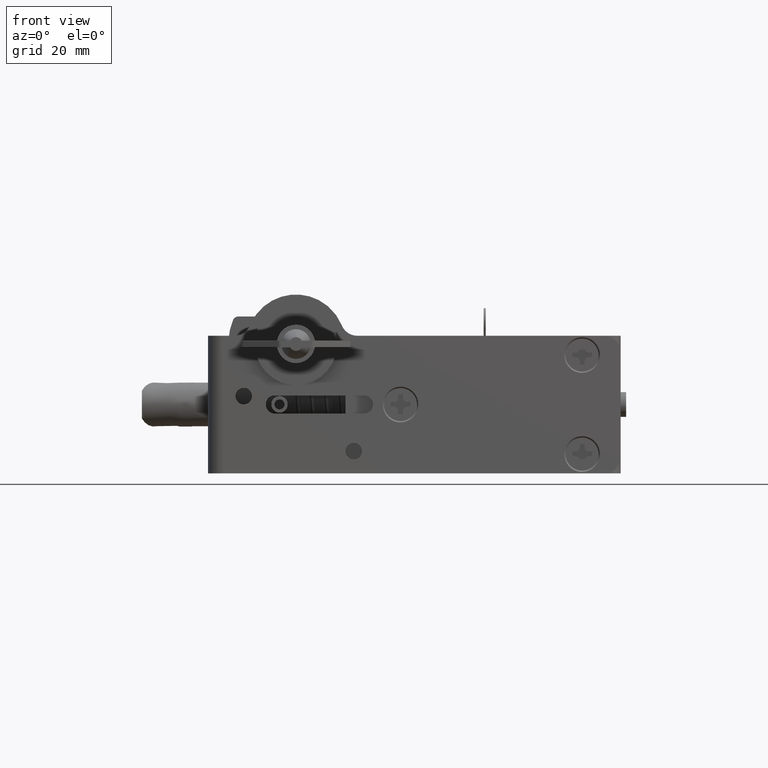
[diagram: clean part render]
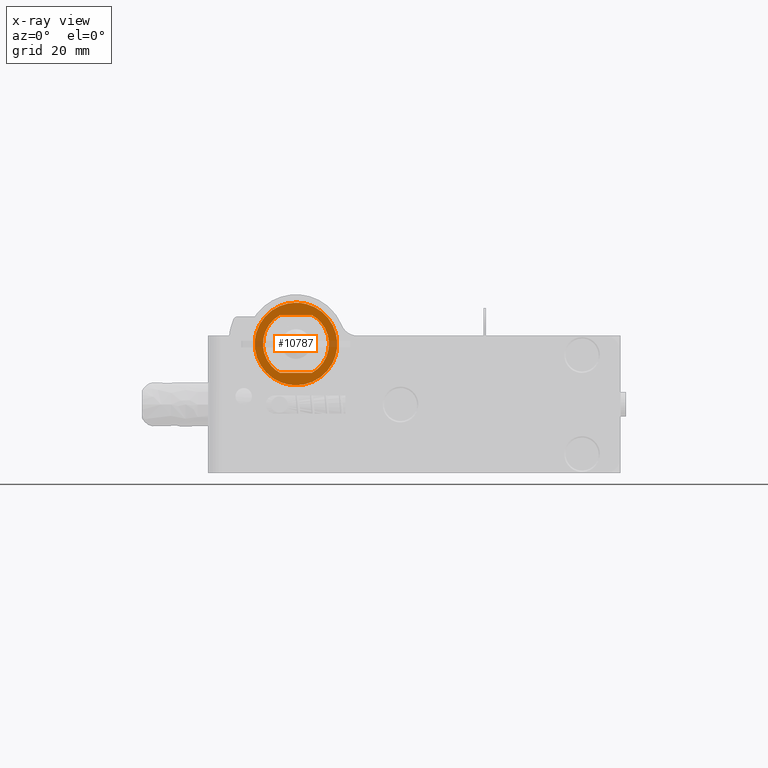
[diagram: x-ray — body ghosted, one internal face saturated and labeled with its STEP entity id]
A machine part, front view, then the same camera in x-ray: the body is ghosted and one INTERNAL B-rep face — a face not visible from any outside direction — is saturated and labeled: STEP entity #10787.
In plain terms, the highlighted face is a freeform B-spline surface patch.
Its self-contained STEP definition (entity closure, byte-faithful):
#9805=CARTESIAN_POINT('',(7.447564542535472,8.517430E-014,-0.885247075541558));
#9806=VERTEX_POINT('',#9805);
#9812=CARTESIAN_POINT('',(-1.940231E-015,8.526513E-014,7.499992000000000));
#9813=VERTEX_POINT('',#9812);
#9814=CARTESIAN_POINT('',(7.447564542535472,8.517430E-014,-0.885247075541558));
#9815=CARTESIAN_POINT('',(7.499991999999998,8.526513E-014,-0.444176007342346));
#9816=CARTESIAN_POINT('',(7.499991999999998,8.526513E-014,0.0));
#9817=CARTESIAN_POINT('',(7.499991999999998,8.526513E-014,7.499992000000001));
#9818=CARTESIAN_POINT('',(-1.940231E-015,8.526513E-014,7.499992000000000));
#9826=(BOUNDED_CURVE()B_SPLINE_CURVE(2,(#9814,#9815,#9816,#9817,#9818),.UNSPECIFIED.,.F.,.U.)B_SPLINE_CURVE_WITH_KNOTS((3,2,3),(0.229562671849923,0.250000000000000,0.500000000000000),.UNSPECIFIED.)CURVE()GEOMETRIC_REPRESENTATION_ITEM()RATIONAL_B_SPLINE_CURVE((0.956027142931557,0.976056180696708,1.0,0.707106781186547,1.0))REPRESENTATION_ITEM(''));
#9827=EDGE_CURVE('',#9806,#9813,#9826,.T.);
#9829=CARTESIAN_POINT('',(-7.486003003080642,8.540391E-014,0.457863558204431));
#9830=VERTEX_POINT('',#9829);
#9831=CARTESIAN_POINT('',(-1.940231E-015,8.526513E-014,7.499992000000000));
#9832=CARTESIAN_POINT('',(-7.055287975990589,8.526513E-014,7.499992000000002));
#9833=CARTESIAN_POINT('',(-7.486003003080643,8.540391E-014,0.457863558204431));
#9841=(BOUNDED_CURVE()B_SPLINE_CURVE(2,(#9831,#9832,#9833),.UNSPECIFIED.,.F.,.U.)B_SPLINE_CURVE_WITH_KNOTS((3,3),(0.500000000000000,0.739332962238219),.UNSPECIFIED.)CURVE()GEOMETRIC_REPRESENTATION_ITEM()RATIONAL_B_SPLINE_CURVE((1.0,0.719603993287558,0.976072041665166))REPRESENTATION_ITEM(''));
#9842=EDGE_CURVE('',#9813,#9830,#9841,.T.);
#9916=CARTESIAN_POINT('',(-1.940231E-015,8.526513E-014,-7.499992000000000));
#9917=VERTEX_POINT('',#9916);
#9918=CARTESIAN_POINT('',(-7.486003003080642,8.540391E-014,0.457863558204431));
#9919=CARTESIAN_POINT('',(-7.499992000000002,8.526513E-014,0.229145480398859));
#9920=CARTESIAN_POINT('',(-7.499992000000002,8.526513E-014,0.0));
#9921=CARTESIAN_POINT('',(-7.499992000000004,8.526513E-014,-7.499992000000001));
#9922=CARTESIAN_POINT('',(-1.940231E-015,8.526513E-014,-7.499992000000000));
#9930=(BOUNDED_CURVE()B_SPLINE_CURVE(2,(#9918,#9919,#9920,#9921,#9922),.UNSPECIFIED.,.F.,.U.)B_SPLINE_CURVE_WITH_KNOTS((3,2,3),(0.739332962238220,0.750000000000000,1.0),.UNSPECIFIED.)CURVE()GEOMETRIC_REPRESENTATION_ITEM()RATIONAL_B_SPLINE_CURVE((0.976072041665167,0.987502787898990,1.0,0.707106781186547,1.0))REPRESENTATION_ITEM(''));
#9931=EDGE_CURVE('',#9830,#9917,#9930,.T.);
#9933=CARTESIAN_POINT('',(-1.940231E-015,8.526513E-014,-7.499992000000000));
#9934=CARTESIAN_POINT('',(6.661309711664558,8.526513E-014,-7.499992000000000));
#9935=CARTESIAN_POINT('',(7.447564542535472,8.517430E-014,-0.885247075541558));
#9943=(BOUNDED_CURVE()B_SPLINE_CURVE(2,(#9933,#9934,#9935),.UNSPECIFIED.,.F.,.U.)B_SPLINE_CURVE_WITH_KNOTS((3,3),(0.0,0.229562671849923),.UNSPECIFIED.)CURVE()GEOMETRIC_REPRESENTATION_ITEM()RATIONAL_B_SPLINE_CURVE((1.0,0.731050600489839,0.956027142931557))REPRESENTATION_ITEM(''));
#9944=EDGE_CURVE('',#9917,#9806,#9943,.T.);
#10096=CARTESIAN_POINT('',(-2.904737509655550,-2.949030E-014,-5.250000000000000));
#10097=VERTEX_POINT('',#10096);
#10153=CARTESIAN_POINT('',(2.904737509655545,-2.949030E-014,-5.250000000000000));
#10154=VERTEX_POINT('',#10153);
#10160=CARTESIAN_POINT('',(2.904737509655545,-2.949030E-014,-5.250000000000000));
#10161=CARTESIAN_POINT('',(-2.904737509655550,-2.949030E-014,-5.250000000000000));
#10162=QUASI_UNIFORM_CURVE('',1,(#10160,#10161),.UNSPECIFIED.,.F.,.U.);
#10163=EDGE_CURVE('',#10154,#10097,#10162,.T.);
#10173=CARTESIAN_POINT('',(2.904737509655545,-2.949030E-014,5.250000000000000));
#10174=VERTEX_POINT('',#10173);
#10230=CARTESIAN_POINT('',(-2.904737509655550,-2.949030E-014,5.250000000000000));
#10231=VERTEX_POINT('',#10230);
#10237=CARTESIAN_POINT('',(2.904737509655545,-2.949030E-014,5.250000000000000));
#10238=CARTESIAN_POINT('',(-2.904737509655550,-2.949030E-014,5.250000000000000));
#10239=QUASI_UNIFORM_CURVE('',1,(#10237,#10238),.UNSPECIFIED.,.F.,.U.);
#10240=EDGE_CURVE('',#10174,#10231,#10239,.T.);
#10720=CARTESIAN_POINT('',(2.904737509655549,-1.307160E-014,-5.250000000000006));
#10721=CARTESIAN_POINT('',(5.999999999999998,-1.307160E-014,-3.537442846107938));
#10722=CARTESIAN_POINT('',(5.999999999999998,-1.307160E-014,0.0));
#10723=CARTESIAN_POINT('',(5.999999999999998,-1.307160E-014,3.537442846107938));
#10724=CARTESIAN_POINT('',(2.904737509655545,-2.949030E-014,5.250000000000000));
#10732=(BOUNDED_CURVE()B_SPLINE_CURVE(2,(#10720,#10721,#10722,#10723,#10724),.UNSPECIFIED.,.F.,.U.)B_SPLINE_CURVE_WITH_KNOTS((3,2,3),(0.0,0.500000000000000,1.0),.UNSPECIFIED.)CURVE()GEOMETRIC_REPRESENTATION_ITEM()RATIONAL_B_SPLINE_CURVE((1.0,0.861429892178094,1.0,0.861429892178094,1.0))REPRESENTATION_ITEM(''));
#10733=EDGE_CURVE('',#10154,#10174,#10732,.T.);
#10756=CARTESIAN_POINT('',(-8.249058769397257,4.263256E-014,8.249241171727119));
#10757=CARTESIAN_POINT('',(-8.249058769397257,4.263256E-014,-8.249241574058043));
#10758=CARTESIAN_POINT('',(8.249104769232790,4.263256E-014,8.249241171727119));
#10759=CARTESIAN_POINT('',(8.249104769232790,4.263256E-014,-8.249241574058043));
#10760=B_SPLINE_SURFACE_WITH_KNOTS('',1,1,((#10756,#10758),(#10757,#10759)),.UNSPECIFIED.,.F.,.F.,.U.,(2,2),(2,2),(0.0,16.498482745785161),(0.0,16.498163538630049),.UNSPECIFIED.);
#10761=ORIENTED_EDGE('',*,*,#9931,.F.);
#10762=ORIENTED_EDGE('',*,*,#9842,.F.);
#10763=ORIENTED_EDGE('',*,*,#9827,.F.);
#10764=ORIENTED_EDGE('',*,*,#9944,.F.);
#10765=EDGE_LOOP('',(#10761,#10762,#10763,#10764));
#10766=FACE_OUTER_BOUND('',#10765,.T.);
#10767=CARTESIAN_POINT('',(-2.904737509655550,-2.949030E-014,5.250000000000000));
#10768=CARTESIAN_POINT('',(-6.000000000000002,-1.307160E-014,3.537442846107938));
#10769=CARTESIAN_POINT('',(-6.000000000000002,-1.307160E-014,0.0));
#10770=CARTESIAN_POINT('',(-6.000000000000002,-1.307160E-014,-3.537442846107938));
#10771=CARTESIAN_POINT('',(-2.904737509655554,-1.307160E-014,-5.250000000000006));
#10779=(BOUNDED_CURVE()B_SPLINE_CURVE(2,(#10767,#10768,#10769,#10770,#10771),.UNSPECIFIED.,.F.,.U.)B_SPLINE_CURVE_WITH_KNOTS((3,2,3),(0.0,0.500000000000000,1.0),.UNSPECIFIED.)CURVE()GEOMETRIC_REPRESENTATION_ITEM()RATIONAL_B_SPLINE_CURVE((1.0,0.861429892178094,1.0,0.861429892178094,1.0))REPRESENTATION_ITEM(''));
#10780=EDGE_CURVE('',#10231,#10097,#10779,.T.);
#10781=ORIENTED_EDGE('',*,*,#10780,.T.);
#10782=ORIENTED_EDGE('',*,*,#10163,.F.);
#10783=ORIENTED_EDGE('',*,*,#10733,.T.);
#10784=ORIENTED_EDGE('',*,*,#10240,.T.);
#10785=EDGE_LOOP('',(#10781,#10782,#10783,#10784));
#10786=FACE_BOUND('',#10785,.T.);
#10787=ADVANCED_FACE('',(#10766,#10786),#10760,.F.);